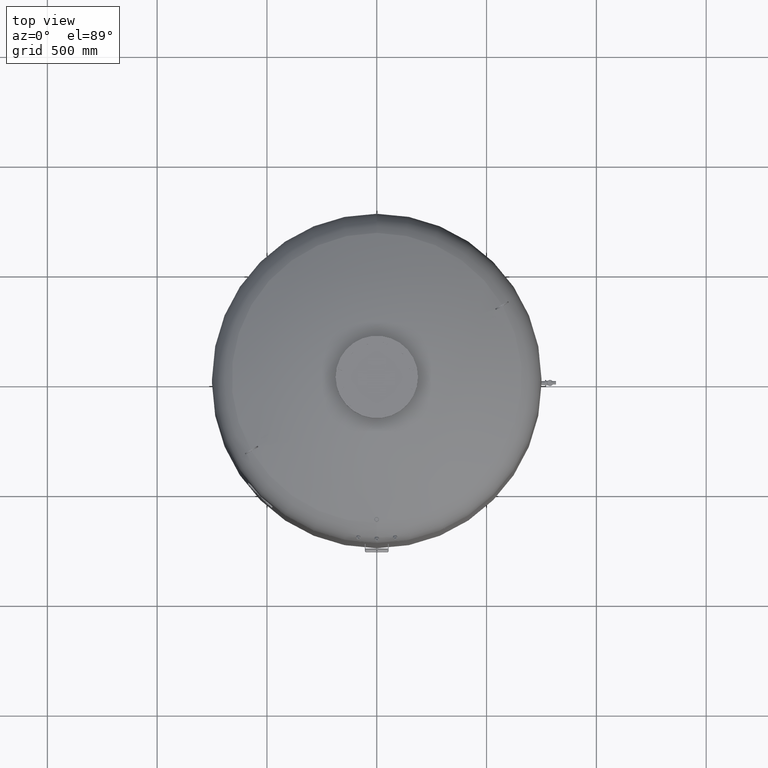
[diagram: clean part render]
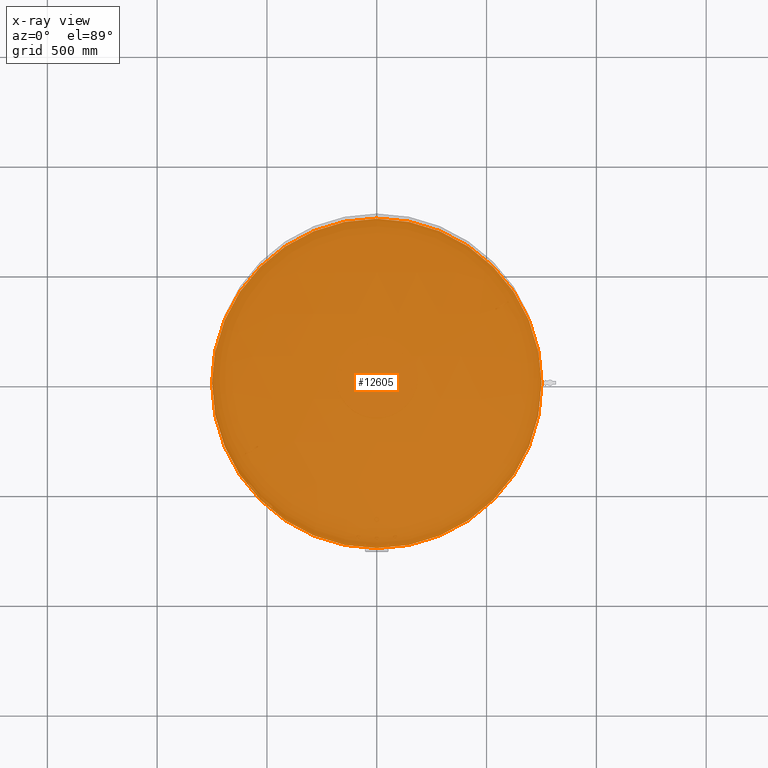
[diagram: x-ray — body ghosted, one internal face saturated and labeled with its STEP entity id]
A machine part, top view, then the same camera in x-ray: the body is ghosted and one INTERNAL B-rep face — a face not visible from any outside direction — is saturated and labeled: STEP entity #12605.
In plain terms, the highlighted planar face has unit normal (0, 0, 1).
Its self-contained STEP definition (entity closure, byte-faithful):
#12403=CARTESIAN_POINT('',(-750.0,-6.062002E-014,818.999999999999890));
#12404=VERTEX_POINT('',#12403);
#12413=CARTESIAN_POINT('',(750.0,3.122546E-014,819.000000000000110));
#12414=VERTEX_POINT('',#12413);
#12415=CARTESIAN_POINT('',(-5.673224E-014,-6.062002E-014,819.0));
#12416=DIRECTION('',(0.0,0.0,1.0));
#12417=DIRECTION('',(-1.0,0.0,0.0));
#12418=AXIS2_PLACEMENT_3D('',#12415,#12416,#12417);
#12419=CIRCLE('',#12418,750.0);
#12420=EDGE_CURVE('',#12414,#12404,#12419,.T.);
#12586=CARTESIAN_POINT('',(-5.673224E-014,-6.062002E-014,819.0));
#12587=DIRECTION('',(0.0,0.0,1.0));
#12588=DIRECTION('',(-1.0,0.0,0.0));
#12589=AXIS2_PLACEMENT_3D('',#12586,#12587,#12588);
#12590=CIRCLE('',#12589,750.0);
#12591=EDGE_CURVE('',#12404,#12414,#12590,.T.);
#12596=CARTESIAN_POINT('',(-375.0,-6.062002E-014,819.0));
#12597=DIRECTION('',(0.0,0.0,1.0));
#12598=DIRECTION('',(0.0,-1.0,0.0));
#12599=AXIS2_PLACEMENT_3D('',#12596,#12597,#12598);
#12600=PLANE('',#12599);
#12601=ORIENTED_EDGE('',*,*,#12591,.T.);
#12602=ORIENTED_EDGE('',*,*,#12420,.T.);
#12603=EDGE_LOOP('',(#12601,#12602));
#12604=FACE_OUTER_BOUND('',#12603,.T.);
#12605=ADVANCED_FACE('',(#12604),#12600,.T.);